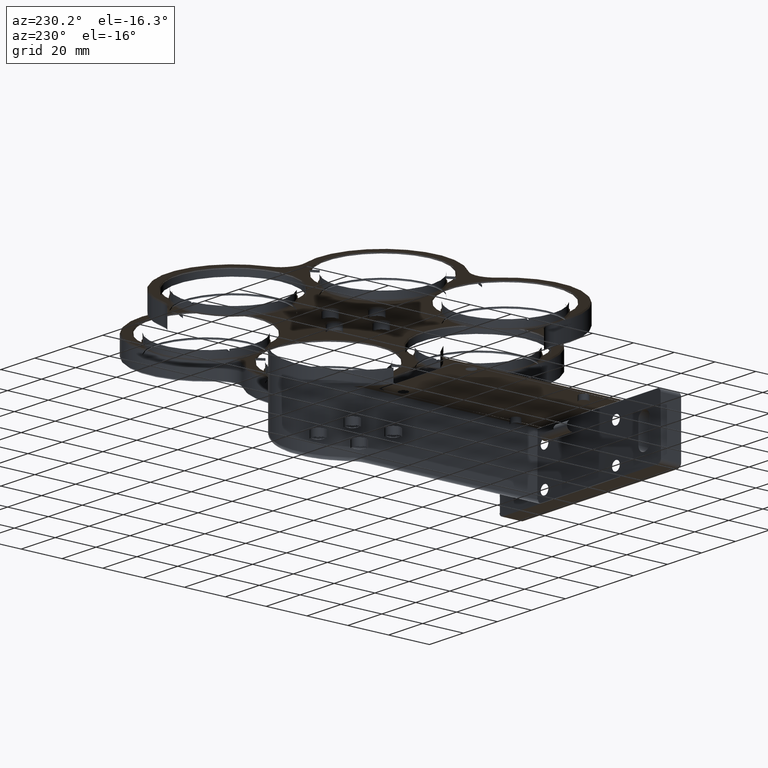
[diagram: clean part render]
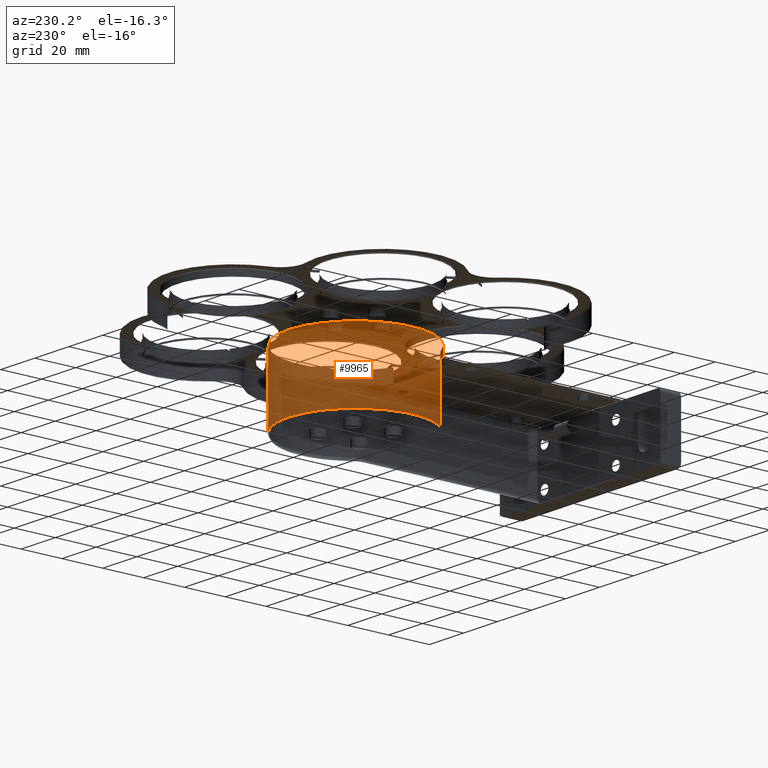
[diagram: same view with one face highlighted and labeled with its STEP entity id]
A machine part, auxiliary view. The second image highlights one B-rep face of the part: STEP entity #9965.
In plain terms, the highlighted cylindrical surface (partial cylindrical patch) has radius 33 mm, axis along (-0, -0, -1).
Its self-contained STEP definition (entity closure, byte-faithful):
#3 = VERTEX_POINT ( 'NONE', #3908 ) ;
#101 = ORIENTED_EDGE ( 'NONE', *, *, #5876, .F. ) ;
#202 = CARTESIAN_POINT ( 'NONE',  ( 18.24372665227754453, 45.33899514364917138, 163.2499999999716067 ) ) ;
#426 = CARTESIAN_POINT ( 'NONE',  ( -30.46150186049483111, 49.49046222845541365, 163.0499999999717033 ) ) ;
#428 = VERTEX_POINT ( 'NONE', #2577 ) ;
#498 = CARTESIAN_POINT ( 'NONE',  ( 12.20665526249482014, 40.90772032186768570, 163.2499999999716351 ) ) ;
#553 = VERTEX_POINT ( 'NONE', #1767 ) ;
#563 = CARTESIAN_POINT ( 'NONE',  ( -18.40785253118222542, 39.83146635550474457, 163.2499999999716636 ) ) ;
#593 = CARTESIAN_POINT ( 'NONE',  ( -4.231816413846789970, 69.63146635550477015, 169.5499999999717033 ) ) ;
#697 = VECTOR ( 'NONE', #9912, 1000.000000000000000 ) ;
#846 = ORIENTED_EDGE ( 'NONE', *, *, #4598, .F. ) ;
#871 = CARTESIAN_POINT ( 'NONE',  ( -28.46934722150229646, 47.09662582786280183, 163.2499999999716351 ) ) ;
#898 = CARTESIAN_POINT ( 'NONE',  ( -17.97954349871426416, 39.63146635550474173, 138.2499999999716636 ) ) ;
#1061 = CARTESIAN_POINT ( 'NONE',  ( -17.97954349871426416, 39.63146635550474173, 169.5499999999717033 ) ) ;
#1243 = B_SPLINE_CURVE_WITH_KNOTS ( 'NONE', 3,
 ( #5144, #871, #9640, #3146, #10972, #5291 ),
 .UNSPECIFIED., .F., .F.,
 ( 4, 2, 4 ),
 ( 0.000000000000000000, 0.5000000000000000000, 1.000000000000000000 ),
 .UNSPECIFIED. ) ;
#1767 = CARTESIAN_POINT ( 'NONE',  ( -31.09228153012584883, 50.46077482553756965, 135.2499999999716636 ) ) ;
#2020 = LINE ( 'NONE', #5410, #697 ) ;
#2157 = CARTESIAN_POINT ( 'NONE',  ( -17.97954349871426416, 39.63146635550474173, 163.0499999999717033 ) ) ;
#2307 = CARTESIAN_POINT ( 'NONE',  ( 9.944219703488677453, 39.83146635550475878, 163.2499999999716636 ) ) ;
#2577 = CARTESIAN_POINT ( 'NONE',  ( 9.944219703488677453, 39.83146635550475878, 163.2499999999716636 ) ) ;
#2625 = CARTESIAN_POINT ( 'NONE',  ( -30.21189750358643877, 48.96900407834946378, 163.0499999999717033 ) ) ;
#2631 = AXIS2_PLACEMENT_3D ( 'NONE', #14399, #10001, #8816 ) ;
#2634 = VERTEX_POINT ( 'NONE', #1061 ) ;
#2702 = CARTESIAN_POINT ( 'NONE',  ( 21.65806548679023535, 49.01217937551380288, 163.1499999999716977 ) ) ;
#2872 = ORIENTED_EDGE ( 'NONE', *, *, #9328, .T. ) ;
#3146 = CARTESIAN_POINT ( 'NONE',  ( -22.78228957309173452, 42.22427497687031916, 163.2499999999716351 ) ) ;
#3203 = CARTESIAN_POINT ( 'NONE',  ( 22.62864870243229376, 50.46077482553760518, 135.2499999999716636 ) ) ;
#3562 = CARTESIAN_POINT ( 'NONE',  ( 9.801929949651521312, 39.76377827867515435, 163.1833333333050007 ) ) ;
#3576 = B_SPLINE_CURVE_WITH_KNOTS ( 'NONE', 3,
 ( #4444, #8135, #3562, #2307 ),
 .UNSPECIFIED., .F., .F.,
 ( 4, 4 ),
 ( 0.000000000000000000, 1.000000000000000000 ),
 .UNSPECIFIED. ) ;
#3685 = B_SPLINE_CURVE_WITH_KNOTS ( 'NONE', 3,
 ( #5794, #498, #9190, #202, #7117, #12582 ),
 .UNSPECIFIED., .F., .F.,
 ( 4, 2, 4 ),
 ( 0.000000000000000000, 0.4999999999999997780, 1.000000000000000000 ),
 .UNSPECIFIED. ) ;
#3781 = CARTESIAN_POINT ( 'NONE',  ( 21.74826467589284107, 48.96900407834941404, 163.0499999999717033 ) ) ;
#3867 = B_SPLINE_CURVE_WITH_KNOTS ( 'NONE', 3,
 ( #8305, #10667, #426, #2625 ),
 .UNSPECIFIED., .F., .F.,
 ( 4, 4 ),
 ( 0.000000000000000000, 1.000000000000000000 ),
 .UNSPECIFIED. ) ;
#3908 = CARTESIAN_POINT ( 'NONE',  ( -31.09228153012584173, 50.46077482553756965, 163.0499999999717033 ) ) ;
#3920 = EDGE_CURVE ( 'NONE', #8011, #5562, #5101, .T. ) ;
#3987 = DIRECTION ( 'NONE',  ( -0.000000000000000000, -0.000000000000000000, -1.000000000000000000 ) ) ;
#4123 = DIRECTION ( 'NONE',  ( -1.000000000000000000, 0.000000000000000000, 0.000000000000000000 ) ) ;
#4205 = EDGE_CURVE ( 'NONE', #11674, #12448, #1243, .T. ) ;
#4444 = CARTESIAN_POINT ( 'NONE',  ( 9.515910671020723299, 39.63146635550477015, 163.0499999999717033 ) ) ;
#4598 = EDGE_CURVE ( 'NONE', #428, #14336, #3685, .T. ) ;
#4932 = VERTEX_POINT ( 'NONE', #2157 ) ;
#4991 = EDGE_CURVE ( 'NONE', #2634, #8011, #8964, .T. ) ;
#5084 = DIRECTION ( 'NONE',  ( -0.000000000000000000, -0.000000000000000000, -1.000000000000000000 ) ) ;
#5101 = LINE ( 'NONE', #9597, #9637 ) ;
#5144 = CARTESIAN_POINT ( 'NONE',  ( -30.03149912538124156, 49.05535467267823435, 163.2499999999716636 ) ) ;
#5160 = CARTESIAN_POINT ( 'NONE',  ( -4.231816413846789970, 69.63146635550477015, 138.2499999999716636 ) ) ;
#5291 = CARTESIAN_POINT ( 'NONE',  ( -18.40785253118222542, 39.83146635550474457, 163.2499999999716636 ) ) ;
#5410 = CARTESIAN_POINT ( 'NONE',  ( -31.09228153012584528, 50.46077482553756965, 138.2499999999716636 ) ) ;
#5496 = ORIENTED_EDGE ( 'NONE', *, *, #9281, .F. ) ;
#5562 = VERTEX_POINT ( 'NONE', #13075 ) ;
#5733 = CARTESIAN_POINT ( 'NONE',  ( 9.515910671020723299, 39.63146635550477015, 169.5499999999717033 ) ) ;
#5794 = CARTESIAN_POINT ( 'NONE',  ( 9.944219703488677453, 39.83146635550475878, 163.2499999999716636 ) ) ;
#5840 = ORIENTED_EDGE ( 'NONE', *, *, #10489, .F. ) ;
#5876 = EDGE_CURVE ( 'NONE', #553, #3, #2020, .T. ) ;
#5993 = CARTESIAN_POINT ( 'NONE',  ( 22.62864870243229376, 50.46077482553760518, 163.0499999999717033 ) ) ;
#6036 = DIRECTION ( 'NONE',  ( -1.000000000000000000, 0.000000000000000000, 0.000000000000000000 ) ) ;
#6224 = CARTESIAN_POINT ( 'NONE',  ( -17.97954349871426416, 39.63146635550474173, 163.0499999999717033 ) ) ;
#6691 = ORIENTED_EDGE ( 'NONE', *, *, #9618, .F. ) ;
#6876 = ORIENTED_EDGE ( 'NONE', *, *, #4991, .F. ) ;
#7117 = CARTESIAN_POINT ( 'NONE',  ( 20.00594297876490657, 47.09691244272151778, 163.2499999999716920 ) ) ;
#7195 = DIRECTION ( 'NONE',  ( -0.000000000000000000, -0.000000000000000000, -1.000000000000000000 ) ) ;
#7266 = B_SPLINE_CURVE_WITH_KNOTS ( 'NONE', 3,
 ( #3781, #11684, #8970, #5993 ),
 .UNSPECIFIED., .F., .F.,
 ( 4, 4 ),
 ( 0.000000000000000000, 1.000000000000000000 ),
 .UNSPECIFIED. ) ;
#7433 = FACE_OUTER_BOUND ( 'NONE', #10746, .T. ) ;
#7600 = LINE ( 'NONE', #898, #8765 ) ;
#8001 = CARTESIAN_POINT ( 'NONE',  ( -18.40785253118222542, 39.83146635550474457, 163.2499999999716636 ) ) ;
#8011 = VERTEX_POINT ( 'NONE', #5733 ) ;
#8053 = AXIS2_PLACEMENT_3D ( 'NONE', #5160, #10765, #4123 ) ;
#8135 = CARTESIAN_POINT ( 'NONE',  ( 9.659155389648731216, 39.69710933210631509, 163.1166666666383378 ) ) ;
#8305 = CARTESIAN_POINT ( 'NONE',  ( -31.09228153012584173, 50.46077482553756965, 163.0499999999717033 ) ) ;
#8343 = B_SPLINE_CURVE_WITH_KNOTS ( 'NONE', 3,
 ( #563, #9615, #9406, #6224 ),
 .UNSPECIFIED., .F., .F.,
 ( 4, 4 ),
 ( 0.000000000000000000, 1.000000000000000000 ),
 .UNSPECIFIED. ) ;
#8487 = AXIS2_PLACEMENT_3D ( 'NONE', #593, #5084, #6036 ) ;
#8751 = CIRCLE ( 'NONE', #2631, 33.00000000000000000 ) ;
#8765 = VECTOR ( 'NONE', #14516, 1000.000000000000000 ) ;
#8783 = ORIENTED_EDGE ( 'NONE', *, *, #10831, .F. ) ;
#8816 = DIRECTION ( 'NONE',  ( 1.000000000000000000, 0.000000000000000000, 0.000000000000000000 ) ) ;
#8964 = CIRCLE ( 'NONE', #8487, 33.00000000000000000 ) ;
#8970 = CARTESIAN_POINT ( 'NONE',  ( 22.29280232694808461, 49.99021329993895080, 163.0499999999717033 ) ) ;
#9190 = CARTESIAN_POINT ( 'NONE',  ( 14.31870798417351409, 42.22421040727320474, 163.2499999999716636 ) ) ;
#9281 = EDGE_CURVE ( 'NONE', #12846, #14517, #10671, .T. ) ;
#9328 = EDGE_CURVE ( 'NONE', #553, #14517, #8751, .T. ) ;
#9406 = CARTESIAN_POINT ( 'NONE',  ( -18.12278821734226852, 39.69710933210628667, 163.1166666666383662 ) ) ;
#9561 = CARTESIAN_POINT ( 'NONE',  ( 22.62864870243229731, 50.46077482553761229, 138.2499999999716636 ) ) ;
#9597 = CARTESIAN_POINT ( 'NONE',  ( 9.515910671020723299, 39.63146635550477015, 138.2499999999716636 ) ) ;
#9615 = CARTESIAN_POINT ( 'NONE',  ( -18.26556277734506750, 39.76377827867514014, 163.1833333333050007 ) ) ;
#9618 = EDGE_CURVE ( 'NONE', #14336, #12846, #7266, .T. ) ;
#9637 = VECTOR ( 'NONE', #3987, 1000.000000000000000 ) ;
#9640 = CARTESIAN_POINT ( 'NONE',  ( -26.70741071874653727, 45.33893057405214222, 163.2499999999716636 ) ) ;
#9692 = VECTOR ( 'NONE', #7195, 1000.000000000000000 ) ;
#9810 = EDGE_CURVE ( 'NONE', #4932, #2634, #7600, .T. ) ;
#9833 = ORIENTED_EDGE ( 'NONE', *, *, #9810, .F. ) ;
#9912 = DIRECTION ( 'NONE',  ( 0.000000000000000000, 0.000000000000000000, 1.000000000000000000 ) ) ;
#9965 = ADVANCED_FACE ( 'NONE', ( #7433 ), #12828, .F. ) ;
#10001 = DIRECTION ( 'NONE',  ( -0.000000000000000000, -0.000000000000000000, -1.000000000000000000 ) ) ;
#10158 = CARTESIAN_POINT ( 'NONE',  ( -30.12169831448385082, 49.01217937551384551, 163.1499999999716692 ) ) ;
#10279 = ORIENTED_EDGE ( 'NONE', *, *, #4205, .F. ) ;
#10489 = EDGE_CURVE ( 'NONE', #12448, #4932, #8343, .T. ) ;
#10667 = CARTESIAN_POINT ( 'NONE',  ( -30.75643515464165390, 49.99021329993895080, 163.0499999999717033 ) ) ;
#10671 = LINE ( 'NONE', #9561, #9692 ) ;
#10746 = EDGE_LOOP ( 'NONE', ( #5840, #10279, #14215, #101, #2872, #5496, #6691, #846, #8783, #12592, #6876, #9833 ) ) ;
#10765 = DIRECTION ( 'NONE',  ( -0.000000000000000000, -0.000000000000000000, -1.000000000000000000 ) ) ;
#10831 = EDGE_CURVE ( 'NONE', #5562, #428, #3576, .T. ) ;
#10972 = CARTESIAN_POINT ( 'NONE',  ( -20.66995703484609948, 40.90756283688482853, 163.2499999999716636 ) ) ;
#11674 = VERTEX_POINT ( 'NONE', #10158 ) ;
#11684 = CARTESIAN_POINT ( 'NONE',  ( 21.99786903280124406, 49.49046222845539234, 163.0499999999717033 ) ) ;
#12448 = VERTEX_POINT ( 'NONE', #8001 ) ;
#12582 = CARTESIAN_POINT ( 'NONE',  ( 21.56786629768761188, 49.05535467267817040, 163.2499999999716636 ) ) ;
#12592 = ORIENTED_EDGE ( 'NONE', *, *, #3920, .F. ) ;
#12828 = CYLINDRICAL_SURFACE ( 'NONE', #8053, 33.00000000000000000 ) ;
#12846 = VERTEX_POINT ( 'NONE', #14150 ) ;
#13075 = CARTESIAN_POINT ( 'NONE',  ( 9.515910671020723299, 39.63146635550477015, 163.0499999999717033 ) ) ;
#13461 = EDGE_CURVE ( 'NONE', #3, #11674, #3867, .T. ) ;
#14150 = CARTESIAN_POINT ( 'NONE',  ( 22.62864870243229376, 50.46077482553760518, 163.0499999999717033 ) ) ;
#14215 = ORIENTED_EDGE ( 'NONE', *, *, #13461, .F. ) ;
#14336 = VERTEX_POINT ( 'NONE', #2702 ) ;
#14399 = CARTESIAN_POINT ( 'NONE',  ( -4.231816413846789970, 69.63146635550477015, 135.2499999999716636 ) ) ;
#14516 = DIRECTION ( 'NONE',  ( 0.000000000000000000, 0.000000000000000000, 1.000000000000000000 ) ) ;
#14517 = VERTEX_POINT ( 'NONE', #3203 ) ;